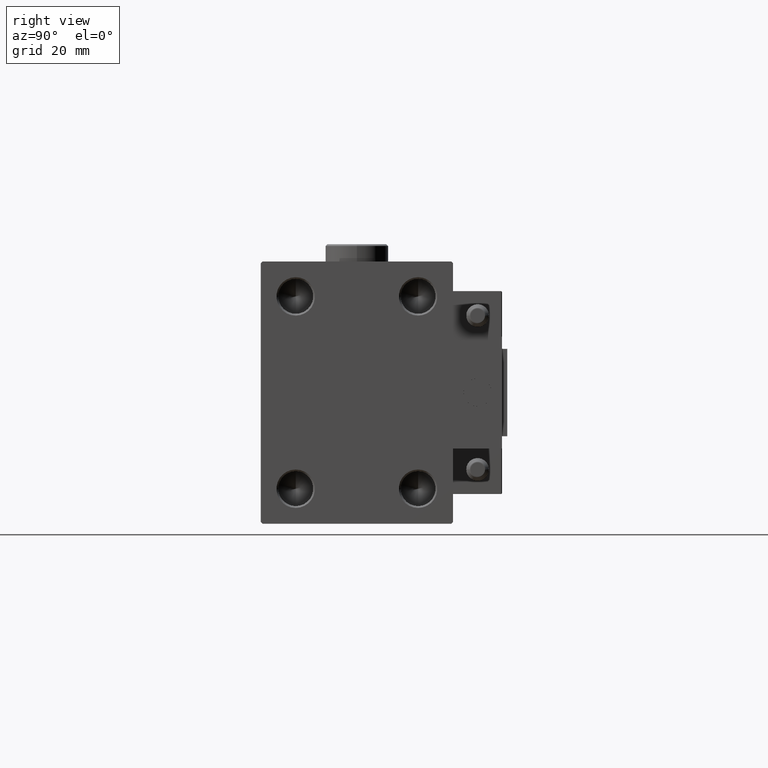
[diagram: clean part render]
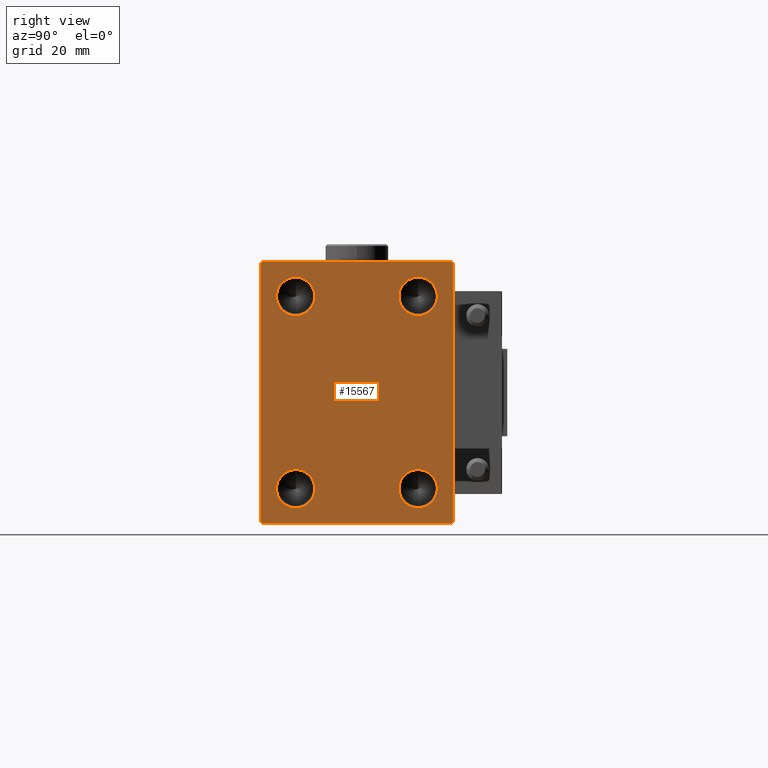
[diagram: same view with one face highlighted and labeled with its STEP entity id]
A machine part, right view. The second image highlights one B-rep face of the part: STEP entity #15567.
In plain terms, the highlighted planar face has unit normal (1, 0, 0).
Its self-contained STEP definition (entity closure, byte-faithful):
#70 = VERTEX_POINT ( 'NONE', #40047 ) ;
#406 = CIRCLE ( 'NONE', #2976, 5.500000000000022204 ) ;
#910 = FACE_BOUND ( 'NONE', #17846, .T. ) ;
#1727 = VERTEX_POINT ( 'NONE', #31215 ) ;
#1958 = CIRCLE ( 'NONE', #32098, 5.500000000000022204 ) ;
#2014 = CARTESIAN_POINT ( 'NONE',  ( 75.00000000000000000, -32.24999999999997868, 32.24999999999997868 ) ) ;
#2802 = DIRECTION ( 'NONE',  ( 0.000000000000000000, -0.7071067811865474617, -0.7071067811865474617 ) ) ;
#2976 = AXIS2_PLACEMENT_3D ( 'NONE', #49945, #29221, #38613 ) ;
#3675 = CARTESIAN_POINT ( 'NONE',  ( 75.00000000000000000, 32.25000000000000000, 32.25000000000000000 ) ) ;
#3824 = CARTESIAN_POINT ( 'NONE',  ( 75.00000000000000000, 17.50000000000000000, 27.50000000000000000 ) ) ;
#4688 = PLANE ( 'NONE',  #33182 ) ;
#4740 = ORIENTED_EDGE ( 'NONE', *, *, #19397, .T. ) ;
#4911 = VECTOR ( 'NONE', #5228, 1000.000000000000000 ) ;
#4943 = FACE_OUTER_BOUND ( 'NONE', #29370, .T. ) ;
#5228 = DIRECTION ( 'NONE',  ( 0.000000000000000000, 0.000000000000000000, -1.000000000000000000 ) ) ;
#5707 = DIRECTION ( 'NONE',  ( 1.000000000000000000, -0.000000000000000000, -0.000000000000000000 ) ) ;
#6253 = VECTOR ( 'NONE', #12031, 1000.000000000000114 ) ;
#6723 = CARTESIAN_POINT ( 'NONE',  ( 75.00000000000000000, -32.24999999999999289, -32.24999999999999289 ) ) ;
#7498 = ORIENTED_EDGE ( 'NONE', *, *, #17633, .F. ) ;
#7601 = DIRECTION ( 'NONE',  ( 0.000000000000000000, 0.000000000000000000, -1.000000000000000000 ) ) ;
#8323 = CARTESIAN_POINT ( 'NONE',  ( 75.00000000000000000, -17.50000000000000000, -21.99999999999997513 ) ) ;
#9035 = CARTESIAN_POINT ( 'NONE',  ( 75.00000000000000000, 27.50000000000000355, -37.50000000000000000 ) ) ;
#9257 = DIRECTION ( 'NONE',  ( 1.000000000000000000, 0.000000000000000000, 0.000000000000000000 ) ) ;
#9272 = ORIENTED_EDGE ( 'NONE', *, *, #37229, .T. ) ;
#9599 = AXIS2_PLACEMENT_3D ( 'NONE', #3824, #24315, #40734 ) ;
#9794 = VECTOR ( 'NONE', #2802, 1000.000000000000114 ) ;
#10068 = EDGE_CURVE ( 'NONE', #21535, #48838, #40582, .T. ) ;
#12031 = DIRECTION ( 'NONE',  ( -0.000000000000000000, -0.7071067811865474617, 0.7071067811865474617 ) ) ;
#12833 = VERTEX_POINT ( 'NONE', #51379 ) ;
#13025 = EDGE_CURVE ( 'NONE', #30512, #20568, #18177, .T. ) ;
#13113 = EDGE_CURVE ( 'NONE', #47724, #70, #39726, .T. ) ;
#13751 = DIRECTION ( 'NONE',  ( 1.000000000000000000, -0.000000000000000000, -0.000000000000000000 ) ) ;
#14146 = DIRECTION ( 'NONE',  ( 0.000000000000000000, 1.000000000000000000, 0.000000000000000000 ) ) ;
#15447 = EDGE_CURVE ( 'NONE', #20211, #21107, #406, .T. ) ;
#15567 = ADVANCED_FACE ( 'NONE', ( #41605, #41865, #910, #34082, #4943 ), #4688, .T. ) ;
#15750 = CARTESIAN_POINT ( 'NONE',  ( 75.00000000000000000, -26.99999999999999645, -37.50000000000000000 ) ) ;
#15794 = EDGE_CURVE ( 'NONE', #39188, #27582, #28865, .T. ) ;
#16155 = DIRECTION ( 'NONE',  ( 1.000000000000000000, -0.000000000000000000, -0.000000000000000000 ) ) ;
#17493 = CARTESIAN_POINT ( 'NONE',  ( 75.00000000000000000, 17.50000000000000000, -27.49999999999999645 ) ) ;
#17633 = EDGE_CURVE ( 'NONE', #12833, #21947, #48730, .T. ) ;
#17846 = EDGE_LOOP ( 'NONE', ( #34685, #7498 ) ) ;
#17870 = DIRECTION ( 'NONE',  ( 0.000000000000000000, 0.000000000000000000, -1.000000000000000000 ) ) ;
#18177 = LINE ( 'NONE', #51060, #20138 ) ;
#18223 = LINE ( 'NONE', #31452, #50952 ) ;
#18506 = ORIENTED_EDGE ( 'NONE', *, *, #49973, .F. ) ;
#18752 = DIRECTION ( 'NONE',  ( -0.000000000000000000, 0.7071067811865474617, 0.7071067811865474617 ) ) ;
#19156 = ORIENTED_EDGE ( 'NONE', *, *, #15447, .F. ) ;
#19328 = ORIENTED_EDGE ( 'NONE', *, *, #10068, .T. ) ;
#19397 = EDGE_CURVE ( 'NONE', #70, #50707, #33551, .T. ) ;
#19795 = CIRCLE ( 'NONE', #49900, 5.500000000000001776 ) ;
#20138 = VECTOR ( 'NONE', #14146, 1000.000000000000000 ) ;
#20211 = VERTEX_POINT ( 'NONE', #29673 ) ;
#20375 = EDGE_CURVE ( 'NONE', #43489, #21535, #40912, .T. ) ;
#20519 = CARTESIAN_POINT ( 'NONE',  ( 75.00000000000000000, 17.50000000000000000, -27.49999999999999645 ) ) ;
#20568 = VERTEX_POINT ( 'NONE', #22504 ) ;
#21107 = VERTEX_POINT ( 'NONE', #21566 ) ;
#21123 = CARTESIAN_POINT ( 'NONE',  ( 75.00000000000000000, 0.000000000000000000, 0.000000000000000000 ) ) ;
#21535 = VERTEX_POINT ( 'NONE', #44507 ) ;
#21566 = CARTESIAN_POINT ( 'NONE',  ( 75.00000000000000000, -17.50000000000000000, 33.00000000000002842 ) ) ;
#21947 = VERTEX_POINT ( 'NONE', #8323 ) ;
#22439 = ORIENTED_EDGE ( 'NONE', *, *, #51554, .F. ) ;
#22504 = CARTESIAN_POINT ( 'NONE',  ( 75.00000000000000000, 27.00000000000000355, -37.50000000000000000 ) ) ;
#22774 = DIRECTION ( 'NONE',  ( 0.000000000000000000, 0.000000000000000000, -1.000000000000000000 ) ) ;
#22911 = CARTESIAN_POINT ( 'NONE',  ( 75.00000000000000000, 27.50000000000000355, -37.00000000000000000 ) ) ;
#23643 = CARTESIAN_POINT ( 'NONE',  ( 75.00000000000000000, 17.50000000000000000, 21.99999999999999289 ) ) ;
#24245 = CIRCLE ( 'NONE', #9599, 5.500000000000001776 ) ;
#24315 = DIRECTION ( 'NONE',  ( 1.000000000000000000, -0.000000000000000000, -0.000000000000000000 ) ) ;
#26240 = CARTESIAN_POINT ( 'NONE',  ( 75.00000000000000000, 27.00000000000001066, 37.50000000000000000 ) ) ;
#26721 = EDGE_CURVE ( 'NONE', #21947, #12833, #28308, .T. ) ;
#26735 = DIRECTION ( 'NONE',  ( 0.000000000000000000, 0.000000000000000000, -1.000000000000000000 ) ) ;
#26820 = CARTESIAN_POINT ( 'NONE',  ( 75.00000000000000000, 17.50000000000000000, -21.99999999999997513 ) ) ;
#26873 = ORIENTED_EDGE ( 'NONE', *, *, #15794, .F. ) ;
#27228 = LINE ( 'NONE', #6723, #27441 ) ;
#27441 = VECTOR ( 'NONE', #52519, 1000.000000000000114 ) ;
#27582 = VERTEX_POINT ( 'NONE', #33873 ) ;
#27690 = ORIENTED_EDGE ( 'NONE', *, *, #13113, .T. ) ;
#28295 = CARTESIAN_POINT ( 'NONE',  ( 75.00000000000000000, -17.50000000000000000, -27.49999999999999645 ) ) ;
#28308 = CIRCLE ( 'NONE', #46364, 5.500000000000018652 ) ;
#28631 = DIRECTION ( 'NONE',  ( 1.000000000000000000, -0.000000000000000000, -0.000000000000000000 ) ) ;
#28865 = CIRCLE ( 'NONE', #44341, 5.500000000000018652 ) ;
#29221 = DIRECTION ( 'NONE',  ( 1.000000000000000000, -0.000000000000000000, -0.000000000000000000 ) ) ;
#29370 = EDGE_LOOP ( 'NONE', ( #29440, #27690, #4740, #51769, #34417, #9272, #32399, #19328 ) ) ;
#29440 = ORIENTED_EDGE ( 'NONE', *, *, #48949, .T. ) ;
#29647 = EDGE_CURVE ( 'NONE', #42674, #1727, #19795, .T. ) ;
#29673 = CARTESIAN_POINT ( 'NONE',  ( 75.00000000000000000, -17.50000000000000000, 21.99999999999997868 ) ) ;
#30512 = VERTEX_POINT ( 'NONE', #15750 ) ;
#31006 = CARTESIAN_POINT ( 'NONE',  ( 75.00000000000000000, -17.50000000000000000, -27.49999999999999645 ) ) ;
#31215 = CARTESIAN_POINT ( 'NONE',  ( 75.00000000000000000, 17.50000000000000000, 33.00000000000001421 ) ) ;
#31452 = CARTESIAN_POINT ( 'NONE',  ( 75.00000000000000000, 32.25000000000000000, -32.25000000000000000 ) ) ;
#32062 = CIRCLE ( 'NONE', #35485, 5.500000000000018652 ) ;
#32098 = AXIS2_PLACEMENT_3D ( 'NONE', #34035, #5707, #26735 ) ;
#32399 = ORIENTED_EDGE ( 'NONE', *, *, #20375, .T. ) ;
#33182 = AXIS2_PLACEMENT_3D ( 'NONE', #21123, #9257, #17870 ) ;
#33551 = LINE ( 'NONE', #42404, #4911 ) ;
#33873 = CARTESIAN_POINT ( 'NONE',  ( 75.00000000000000000, 17.50000000000000000, -33.00000000000001421 ) ) ;
#34035 = CARTESIAN_POINT ( 'NONE',  ( 75.00000000000000000, -17.50000000000000000, 27.50000000000000000 ) ) ;
#34082 = FACE_BOUND ( 'NONE', #53311, .T. ) ;
#34417 = ORIENTED_EDGE ( 'NONE', *, *, #13025, .T. ) ;
#34685 = ORIENTED_EDGE ( 'NONE', *, *, #26721, .F. ) ;
#35107 = EDGE_CURVE ( 'NONE', #21107, #20211, #1958, .T. ) ;
#35157 = EDGE_LOOP ( 'NONE', ( #18506, #38186 ) ) ;
#35485 = AXIS2_PLACEMENT_3D ( 'NONE', #17493, #49816, #46299 ) ;
#35914 = LINE ( 'NONE', #36442, #39698 ) ;
#36417 = CARTESIAN_POINT ( 'NONE',  ( 75.00000000000000000, -26.99999999999998224, 37.49999999999998579 ) ) ;
#36442 = CARTESIAN_POINT ( 'NONE',  ( 75.00000000000000000, 27.49999999999999645, 37.50000000000000000 ) ) ;
#36626 = DIRECTION ( 'NONE',  ( 0.000000000000000000, -9.251858538542971581E-17, 1.000000000000000000 ) ) ;
#37229 = EDGE_CURVE ( 'NONE', #20568, #43489, #18223, .T. ) ;
#38186 = ORIENTED_EDGE ( 'NONE', *, *, #29647, .F. ) ;
#38613 = DIRECTION ( 'NONE',  ( 0.000000000000000000, 0.000000000000000000, -1.000000000000000000 ) ) ;
#39188 = VERTEX_POINT ( 'NONE', #26820 ) ;
#39698 = VECTOR ( 'NONE', #52323, 1000.000000000000000 ) ;
#39726 = LINE ( 'NONE', #2014, #9794 ) ;
#40047 = CARTESIAN_POINT ( 'NONE',  ( 75.00000000000000000, -27.49999999999999645, 36.99999999999997158 ) ) ;
#40582 = LINE ( 'NONE', #3675, #6253 ) ;
#40734 = DIRECTION ( 'NONE',  ( 0.000000000000000000, 0.000000000000000000, -1.000000000000000000 ) ) ;
#40912 = LINE ( 'NONE', #9035, #44527 ) ;
#41605 = FACE_BOUND ( 'NONE', #35157, .T. ) ;
#41865 = FACE_BOUND ( 'NONE', #42437, .T. ) ;
#42404 = CARTESIAN_POINT ( 'NONE',  ( 75.00000000000000000, -27.49999999999999645, 37.49999999999998579 ) ) ;
#42437 = EDGE_LOOP ( 'NONE', ( #43688, #19156 ) ) ;
#42674 = VERTEX_POINT ( 'NONE', #23643 ) ;
#43238 = DIRECTION ( 'NONE',  ( 1.000000000000000000, -0.000000000000000000, -0.000000000000000000 ) ) ;
#43489 = VERTEX_POINT ( 'NONE', #22911 ) ;
#43543 = EDGE_CURVE ( 'NONE', #50707, #30512, #27228, .T. ) ;
#43688 = ORIENTED_EDGE ( 'NONE', *, *, #35107, .F. ) ;
#44341 = AXIS2_PLACEMENT_3D ( 'NONE', #20519, #28631, #7601 ) ;
#44507 = CARTESIAN_POINT ( 'NONE',  ( 75.00000000000000000, 27.49999999999999645, 37.00000000000001421 ) ) ;
#44527 = VECTOR ( 'NONE', #36626, 1000.000000000000000 ) ;
#45700 = CARTESIAN_POINT ( 'NONE',  ( 75.00000000000000000, -27.49999999999999645, -37.00000000000000000 ) ) ;
#46299 = DIRECTION ( 'NONE',  ( 0.000000000000000000, 0.000000000000000000, -1.000000000000000000 ) ) ;
#46364 = AXIS2_PLACEMENT_3D ( 'NONE', #31006, #13751, #50399 ) ;
#47724 = VERTEX_POINT ( 'NONE', #36417 ) ;
#48730 = CIRCLE ( 'NONE', #50422, 5.500000000000018652 ) ;
#48838 = VERTEX_POINT ( 'NONE', #26240 ) ;
#48949 = EDGE_CURVE ( 'NONE', #48838, #47724, #35914, .T. ) ;
#49816 = DIRECTION ( 'NONE',  ( 1.000000000000000000, -0.000000000000000000, -0.000000000000000000 ) ) ;
#49900 = AXIS2_PLACEMENT_3D ( 'NONE', #50775, #43238, #22774 ) ;
#49945 = CARTESIAN_POINT ( 'NONE',  ( 75.00000000000000000, -17.50000000000000000, 27.50000000000000000 ) ) ;
#49973 = EDGE_CURVE ( 'NONE', #1727, #42674, #24245, .T. ) ;
#50399 = DIRECTION ( 'NONE',  ( 0.000000000000000000, 0.000000000000000000, -1.000000000000000000 ) ) ;
#50422 = AXIS2_PLACEMENT_3D ( 'NONE', #28295, #16155, #53070 ) ;
#50707 = VERTEX_POINT ( 'NONE', #45700 ) ;
#50775 = CARTESIAN_POINT ( 'NONE',  ( 75.00000000000000000, 17.50000000000000000, 27.50000000000000000 ) ) ;
#50952 = VECTOR ( 'NONE', #18752, 1000.000000000000114 ) ;
#51060 = CARTESIAN_POINT ( 'NONE',  ( 75.00000000000000000, -27.49999999999999645, -37.50000000000000000 ) ) ;
#51379 = CARTESIAN_POINT ( 'NONE',  ( 75.00000000000000000, -17.50000000000000000, -33.00000000000001421 ) ) ;
#51554 = EDGE_CURVE ( 'NONE', #27582, #39188, #32062, .T. ) ;
#51769 = ORIENTED_EDGE ( 'NONE', *, *, #43543, .T. ) ;
#52323 = DIRECTION ( 'NONE',  ( 0.000000000000000000, -1.000000000000000000, -2.523234146875355998E-16 ) ) ;
#52519 = DIRECTION ( 'NONE',  ( -0.000000000000000000, 0.7071067811865474617, -0.7071067811865474617 ) ) ;
#53070 = DIRECTION ( 'NONE',  ( 0.000000000000000000, 0.000000000000000000, -1.000000000000000000 ) ) ;
#53311 = EDGE_LOOP ( 'NONE', ( #26873, #22439 ) ) ;